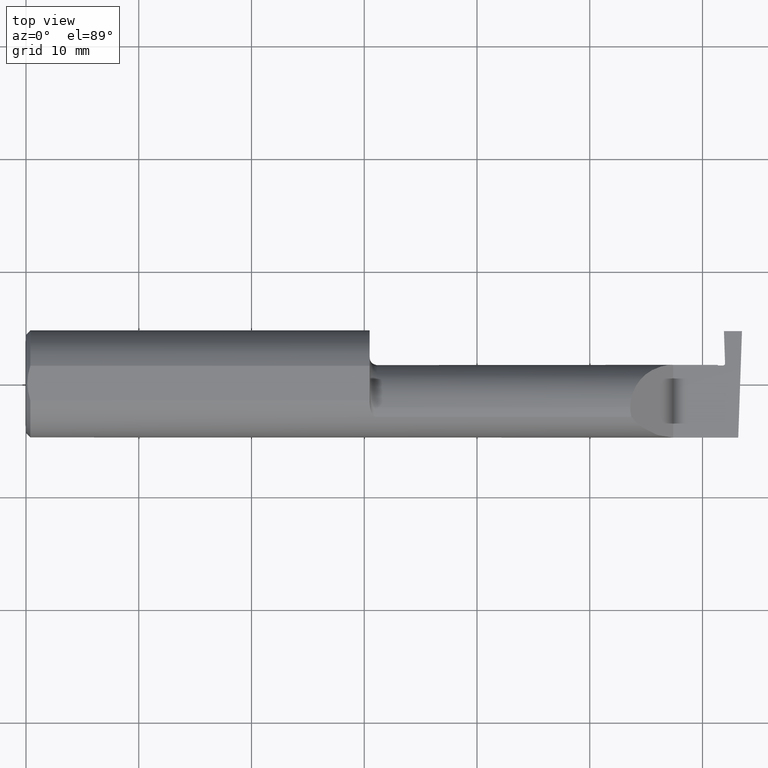
[diagram: clean part render]
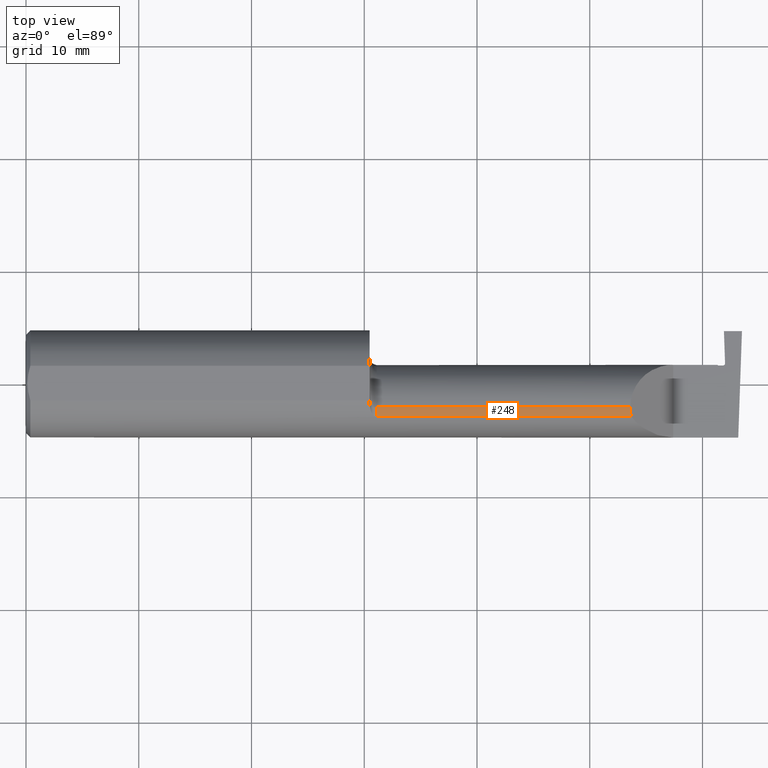
[diagram: same view with one face highlighted and labeled with its STEP entity id]
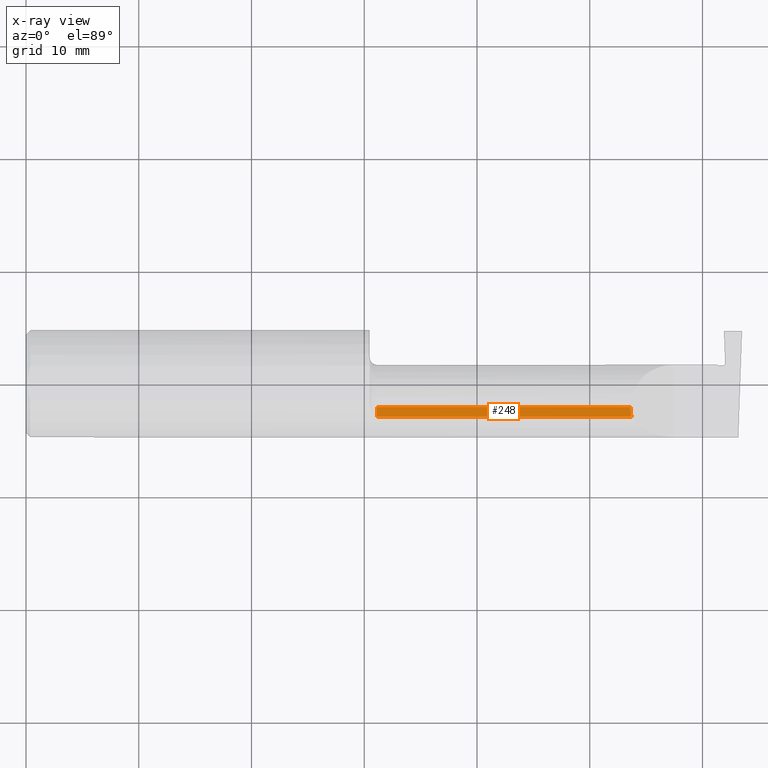
[diagram: x-ray of the same camera — body ghosted, the highlighted face saturated]
A machine part, top view. The second image highlights one B-rep face of the part: STEP entity #248.
The next image is the same camera in x-ray: the body ghosted, the highlighted face saturated — about 0% of this face is hidden behind the body in this view.
In plain terms, the highlighted cylindrical surface (partial cylindrical patch) has radius 3.81 mm, axis along (-1, -0, -0).
Its self-contained STEP definition (entity closure, byte-faithful):
#24 = EDGE_CURVE ( 'NONE', #608, #592, #594, .T. ) ;
#46 = CARTESIAN_POINT ( 'NONE',  ( 2.113883229301070088, -0.1172600179964004286, 0.1461167706989304482 ) ) ;
#70 = DIRECTION ( 'NONE',  ( 0.000000000000000000, 0.000000000000000000, 1.000000000000000000 ) ) ;
#91 = DIRECTION ( 'NONE',  ( -1.000000000000000000, -0.000000000000000000, -0.000000000000000000 ) ) ;
#155 = CARTESIAN_POINT ( 'NONE',  ( 1.225000000000000089, -0.08334999999999996578, 0.000000000000000000 ) ) ;
#168 = VECTOR ( 'NONE', #719, 39.37007874015748143 ) ;
#170 = DIRECTION ( 'NONE',  ( -1.000000000000000000, -0.000000000000000000, -0.000000000000000000 ) ) ;
#209 = VERTEX_POINT ( 'NONE', #221 ) ;
#221 = CARTESIAN_POINT ( 'NONE',  ( 2.110000000000000764, -0.08334999999999996578, 0.1499999999999999667 ) ) ;
#230 = CYLINDRICAL_SURFACE ( 'NONE', #1035, 0.1499999999999999667 ) ;
#248 = ADVANCED_FACE ( 'NONE', ( #725 ), #230, .T. ) ;
#313 = CARTESIAN_POINT ( 'NONE',  ( 1.199999999999999956, -0.08334999999999996578, 0.000000000000000000 ) ) ;
#330 = EDGE_CURVE ( 'NONE', #933, #209, #424, .T. ) ;
#336 = EDGE_LOOP ( 'NONE', ( #872, #535, #645, #429 ) ) ;
#418 = AXIS2_PLACEMENT_3D ( 'NONE', #155, #91, #580 ) ;
#424 =( BOUNDED_CURVE ( )  B_SPLINE_CURVE ( 3, ( #561, #812, #476, #889 ),
 .UNSPECIFIED., .F., .F. ) 
 B_SPLINE_CURVE_WITH_KNOTS ( ( 4, 4 ),
 ( 6.055147272130144032, 6.283185307179586232 ),
 .UNSPECIFIED. ) 
 CURVE ( )  GEOMETRIC_REPRESENTATION_ITEM ( )  RATIONAL_B_SPLINE_CURVE ( ( 1.000000000000000000, 0.9956712472009929815, 0.9956712472009929815, 1.000000000000000000 ) ) 
 REPRESENTATION_ITEM ( '' )  );
#429 = ORIENTED_EDGE ( 'NONE', *, *, #687, .T. ) ;
#476 = CARTESIAN_POINT ( 'NONE',  ( 2.110000000000000320, -0.09477667630339407789, 0.1499999999999999667 ) ) ;
#497 = CARTESIAN_POINT ( 'NONE',  ( 1.199999999999999956, -0.08334999999999996578, 0.1499999999999999667 ) ) ;
#535 = ORIENTED_EDGE ( 'NONE', *, *, #850, .T. ) ;
#561 = CARTESIAN_POINT ( 'NONE',  ( 2.113883229301070088, -0.1172600179964004286, 0.1461167706989304482 ) ) ;
#580 = DIRECTION ( 'NONE',  ( 0.000000000000000000, 0.000000000000000000, 1.000000000000000000 ) ) ;
#588 = DIRECTION ( 'NONE',  ( -1.000000000000000000, -0.000000000000000000, -0.000000000000000000 ) ) ;
#592 = VERTEX_POINT ( 'NONE', #1018 ) ;
#594 = CIRCLE ( 'NONE', #418, 0.1499999999999999667 ) ;
#608 = VERTEX_POINT ( 'NONE', #790 ) ;
#645 = ORIENTED_EDGE ( 'NONE', *, *, #24, .F. ) ;
#656 = LINE ( 'NONE', #497, #735 ) ;
#687 = EDGE_CURVE ( 'NONE', #608, #933, #976, .T. ) ;
#719 = DIRECTION ( 'NONE',  ( 1.000000000000000000, 0.000000000000000000, 0.000000000000000000 ) ) ;
#725 = FACE_OUTER_BOUND ( 'NONE', #336, .T. ) ;
#735 = VECTOR ( 'NONE', #588, 39.37007874015748143 ) ;
#742 = CARTESIAN_POINT ( 'NONE',  ( 1.828500000000000236, -0.1172600179964007477, 0.1461167706989302817 ) ) ;
#790 = CARTESIAN_POINT ( 'NONE',  ( 1.225000000000000089, -0.1172600179964007477, 0.1461167706989302539 ) ) ;
#812 = CARTESIAN_POINT ( 'NONE',  ( 2.111300037307155986, -0.1061291577212407494, 0.1486999626928445783 ) ) ;
#850 = EDGE_CURVE ( 'NONE', #209, #592, #656, .T. ) ;
#872 = ORIENTED_EDGE ( 'NONE', *, *, #330, .T. ) ;
#889 = CARTESIAN_POINT ( 'NONE',  ( 2.110000000000000764, -0.08334999999999996578, 0.1499999999999999667 ) ) ;
#933 = VERTEX_POINT ( 'NONE', #46 ) ;
#976 = LINE ( 'NONE', #742, #168 ) ;
#1018 = CARTESIAN_POINT ( 'NONE',  ( 1.225000000000000089, -0.08334999999999996578, 0.1499999999999999667 ) ) ;
#1035 = AXIS2_PLACEMENT_3D ( 'NONE', #313, #170, #70 ) ;